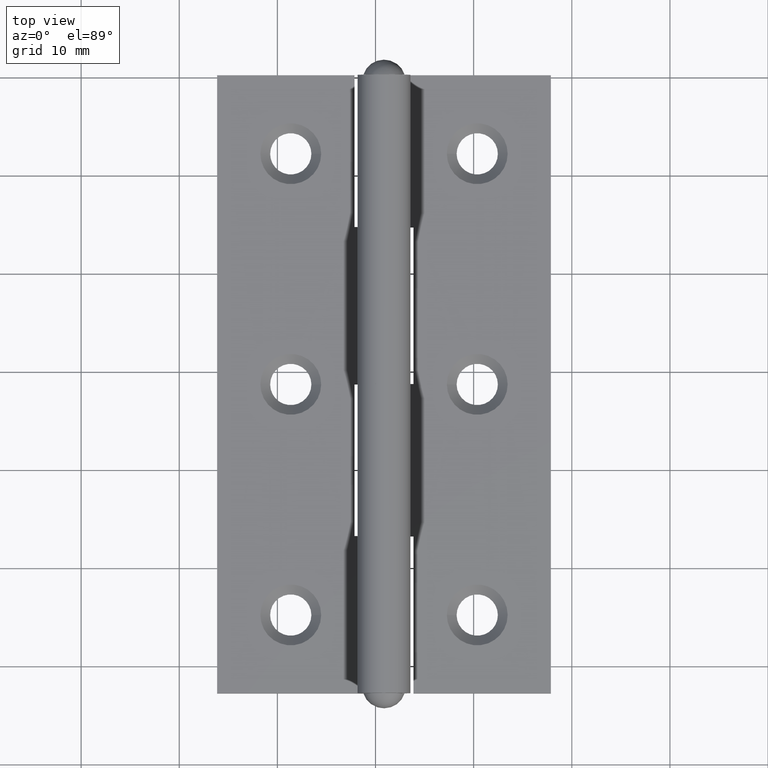
[diagram: clean part render]
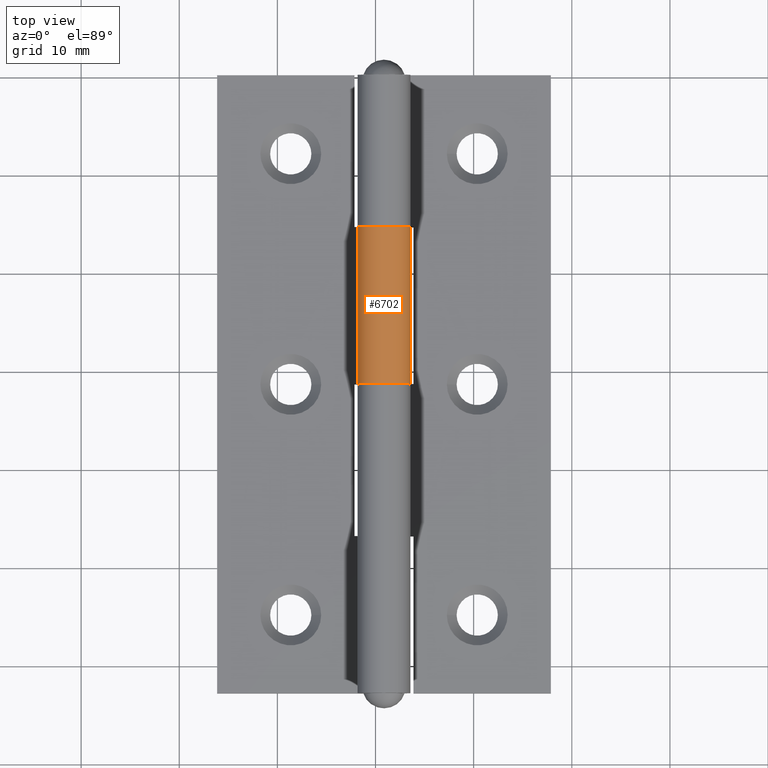
[diagram: same view with one face highlighted and labeled with its STEP entity id]
A machine part, top view. The second image highlights one B-rep face of the part: STEP entity #6702.
In plain terms, the highlighted cylindrical surface (edge-blend (fillet) strip) has radius 2.7 mm, axis along (-0, -1, -0).
Its self-contained STEP definition (entity closure, byte-faithful):
#69 = FACE_OUTER_BOUND ( 'NONE', #4266, .T. ) ;
#106 = CIRCLE ( 'NONE', #2853, 2.700000000000000178 ) ;
#139 = CARTESIAN_POINT ( 'NONE',  ( -2.700000000000000178, 16.00000000000000000, 2.700000000000000178 ) ) ;
#808 = VERTEX_POINT ( 'NONE', #2764 ) ;
#913 = CYLINDRICAL_SURFACE ( 'NONE', #3386, 2.700000000000000178 ) ;
#1308 = CARTESIAN_POINT ( 'NONE',  ( -2.700000000000000178, 31.50000000000000000, 0.000000000000000000 ) ) ;
#1318 = ORIENTED_EDGE ( 'NONE', *, *, #1480, .T. ) ;
#1466 = AXIS2_PLACEMENT_3D ( 'NONE', #139, #5629, #9157 ) ;
#1480 = EDGE_CURVE ( 'NONE', #808, #1612, #10327, .T. ) ;
#1612 = VERTEX_POINT ( 'NONE', #6568 ) ;
#2649 = DIRECTION ( 'NONE',  ( 0.000000000000000000, 0.000000000000000000, 1.000000000000000000 ) ) ;
#2764 = CARTESIAN_POINT ( 'NONE',  ( -2.700000000000000178, 16.00000000000000000, 3.512815038853036338E-16 ) ) ;
#2853 = AXIS2_PLACEMENT_3D ( 'NONE', #8083, #7976, #2649 ) ;
#3386 = AXIS2_PLACEMENT_3D ( 'NONE', #7107, #6258, #8993 ) ;
#3675 = DIRECTION ( 'NONE',  ( -0.000000000000000000, -1.000000000000000000, -0.000000000000000000 ) ) ;
#3932 = VECTOR ( 'NONE', #9374, 1000.000000000000000 ) ;
#4223 = EDGE_CURVE ( 'NONE', #8381, #5096, #106, .T. ) ;
#4266 = EDGE_LOOP ( 'NONE', ( #5728, #5747, #1318, #5751 ) ) ;
#4650 = CARTESIAN_POINT ( 'NONE',  ( -4.874856317093154701, 31.50000000000000000, 1.100000000000001199 ) ) ;
#4920 = LINE ( 'NONE', #4650, #7854 ) ;
#5096 = VERTEX_POINT ( 'NONE', #9320 ) ;
#5629 = DIRECTION ( 'NONE',  ( 0.000000000000000000, -1.000000000000000000, 0.000000000000000000 ) ) ;
#5728 = ORIENTED_EDGE ( 'NONE', *, *, #4223, .T. ) ;
#5747 = ORIENTED_EDGE ( 'NONE', *, *, #7677, .F. ) ;
#5751 = ORIENTED_EDGE ( 'NONE', *, *, #7325, .T. ) ;
#6258 = DIRECTION ( 'NONE',  ( -0.000000000000000000, -1.000000000000000000, -0.000000000000000000 ) ) ;
#6407 = CARTESIAN_POINT ( 'NONE',  ( -4.874856317093154701, 0.000000000000000000, 1.100000000000001421 ) ) ;
#6568 = CARTESIAN_POINT ( 'NONE',  ( -4.874856317093154701, 16.00000000000000000, 1.100000000000001421 ) ) ;
#6702 = ADVANCED_FACE ( 'NONE', ( #69 ), #913, .T. ) ;
#7107 = CARTESIAN_POINT ( 'NONE',  ( -2.700000000000000178, 31.50000000000000000, 2.700000000000000178 ) ) ;
#7325 = EDGE_CURVE ( 'NONE', #1612, #8381, #4920, .T. ) ;
#7677 = EDGE_CURVE ( 'NONE', #808, #5096, #11097, .T. ) ;
#7854 = VECTOR ( 'NONE', #3675, 1000.000000000000000 ) ;
#7976 = DIRECTION ( 'NONE',  ( 0.000000000000000000, 1.000000000000000000, -0.000000000000000000 ) ) ;
#8083 = CARTESIAN_POINT ( 'NONE',  ( -2.700000000000000178, 0.000000000000000000, 2.700000000000000178 ) ) ;
#8381 = VERTEX_POINT ( 'NONE', #6407 ) ;
#8993 = DIRECTION ( 'NONE',  ( 0.000000000000000000, 0.000000000000000000, -1.000000000000000000 ) ) ;
#9157 = DIRECTION ( 'NONE',  ( 0.000000000000000000, 0.000000000000000000, -1.000000000000000000 ) ) ;
#9320 = CARTESIAN_POINT ( 'NONE',  ( -2.700000000000000178, 0.000000000000000000, 3.512815038853034366E-16 ) ) ;
#9374 = DIRECTION ( 'NONE',  ( -0.000000000000000000, -1.000000000000000000, -0.000000000000000000 ) ) ;
#10327 = CIRCLE ( 'NONE', #1466, 2.700000000000000178 ) ;
#11097 = LINE ( 'NONE', #1308, #3932 ) ;